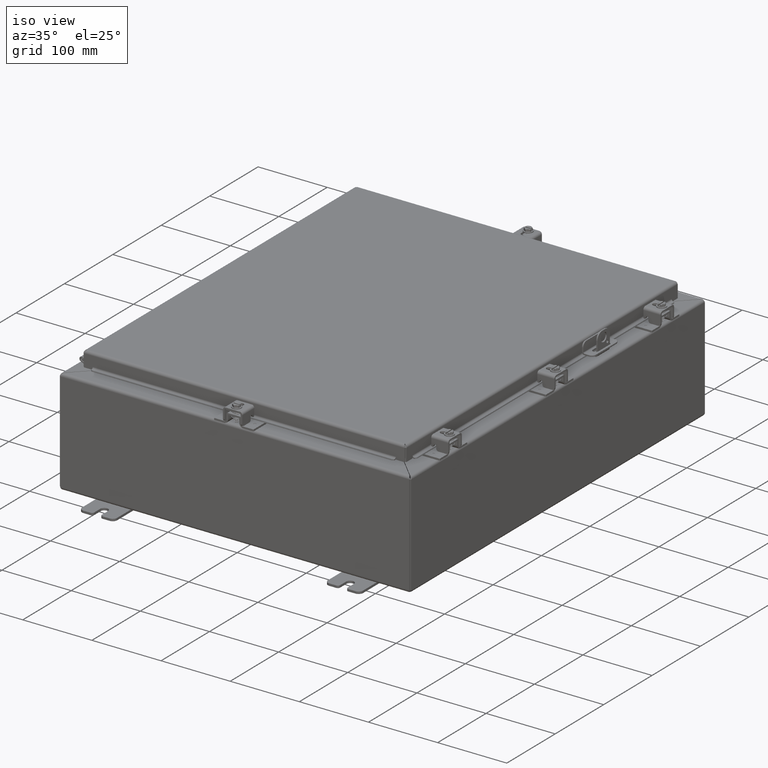
[diagram: clean part render]
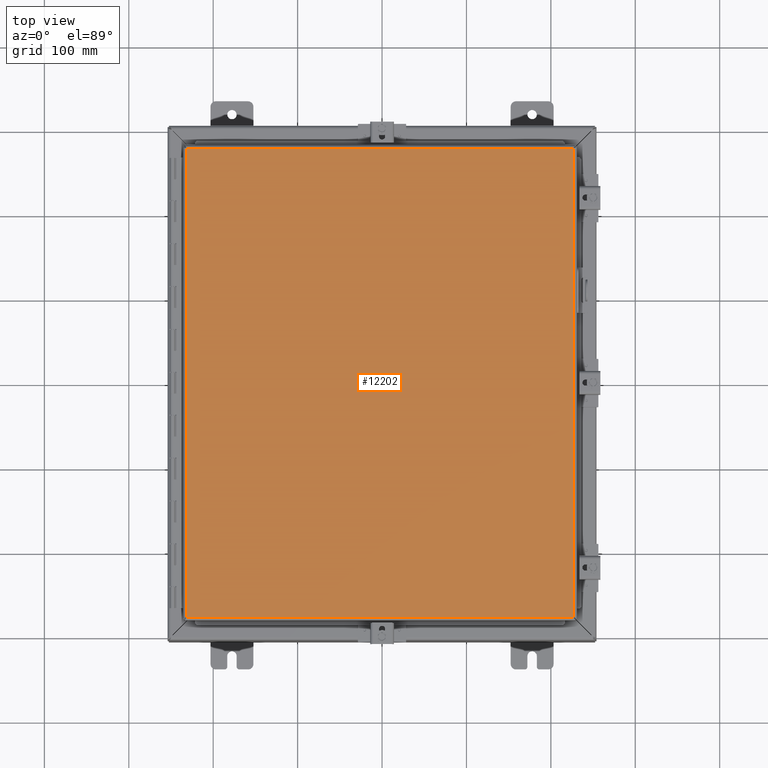
[diagram: tour spotlight — one face highlighted and labeled with its STEP entity id]
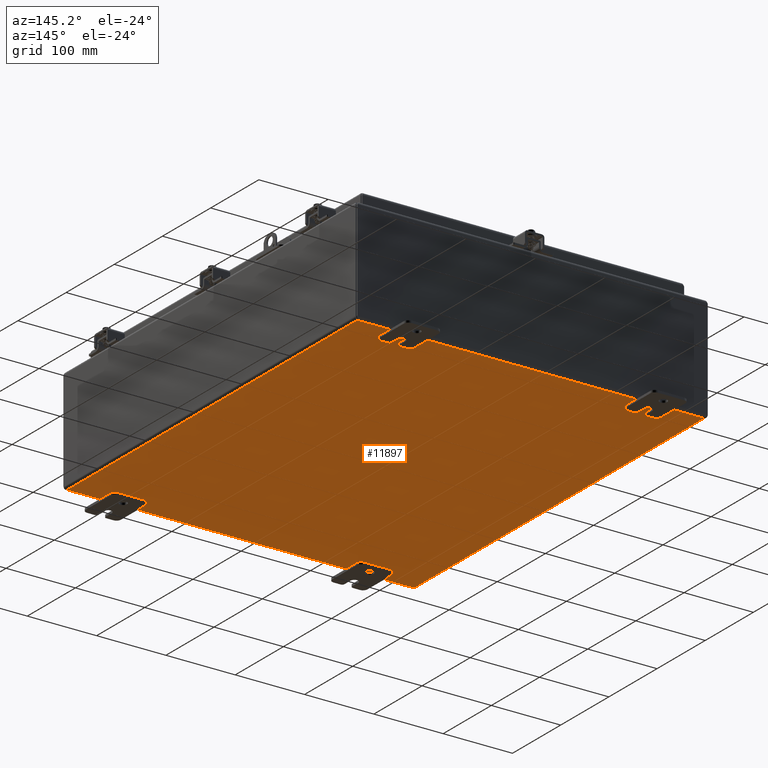
[diagram: tour spotlight — one face highlighted and labeled with its STEP entity id]
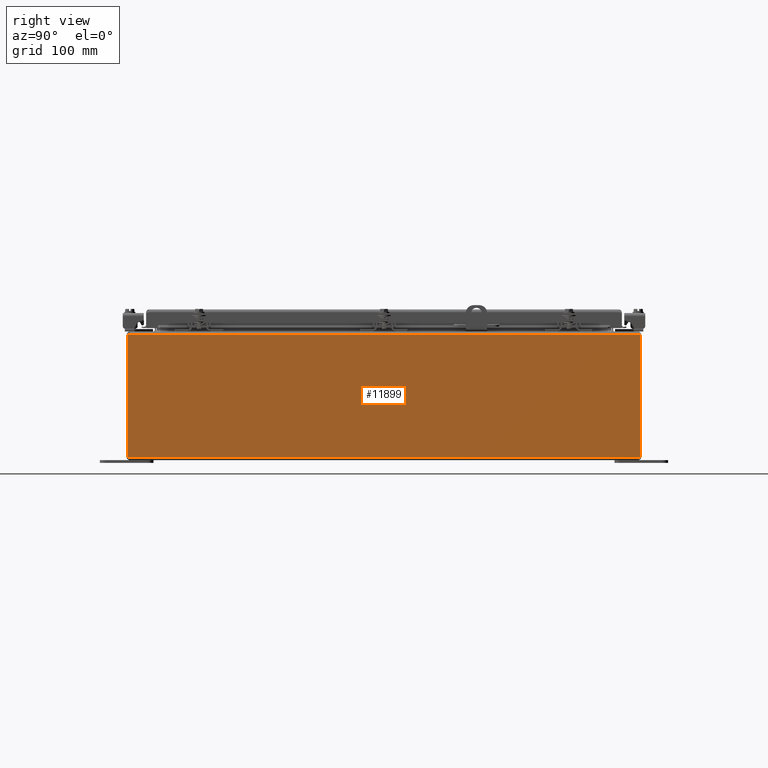
[diagram: tour spotlight — one face highlighted and labeled with its STEP entity id]
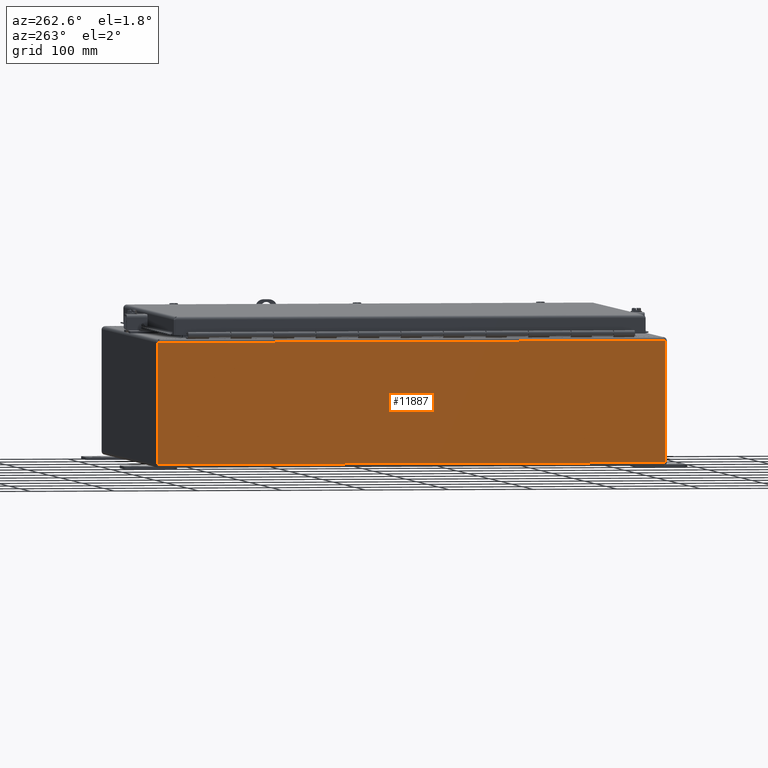
[diagram: tour spotlight — one face highlighted and labeled with its STEP entity id]
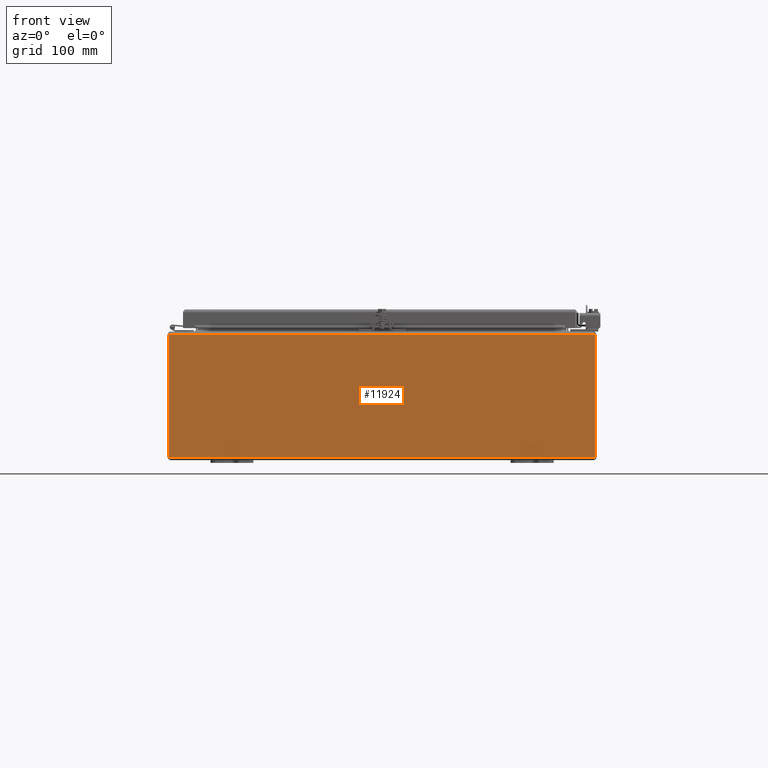
[diagram: tour spotlight — one face highlighted and labeled with its STEP entity id]
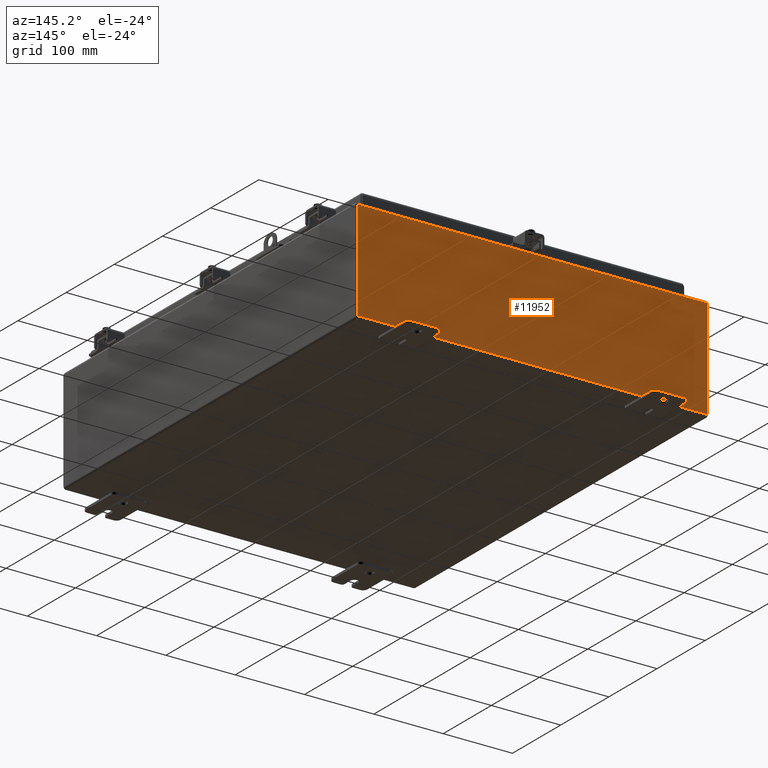
[diagram: tour spotlight — one face highlighted and labeled with its STEP entity id]
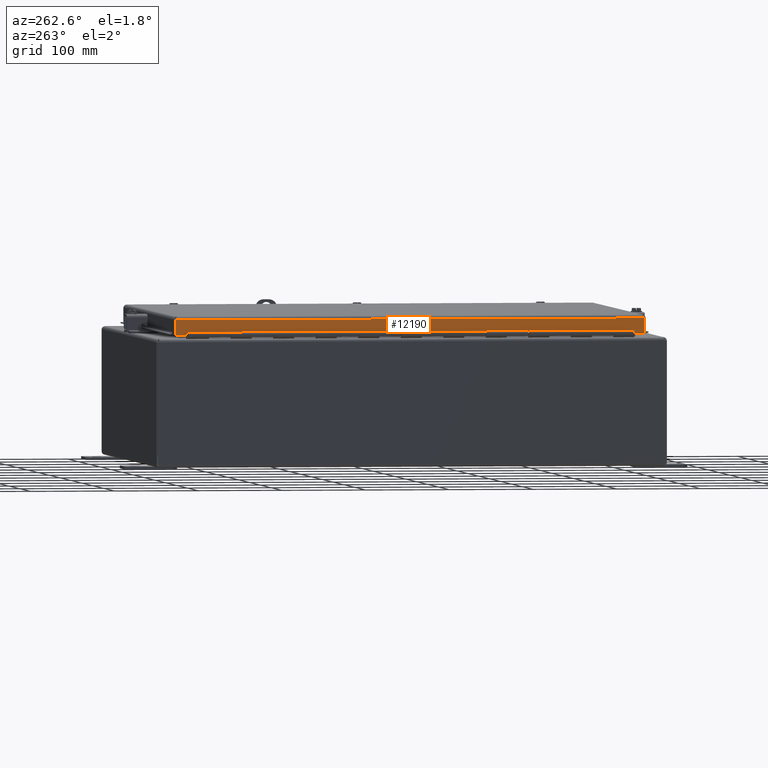
[diagram: tour spotlight — one face highlighted and labeled with its STEP entity id]
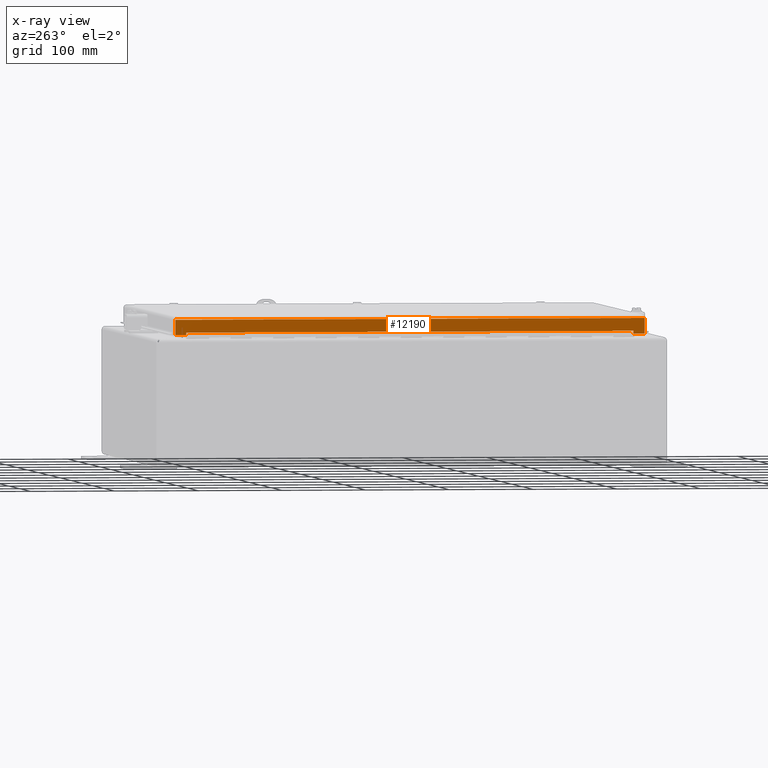
[diagram: x-ray of the same camera — body ghosted, this tour face saturated]
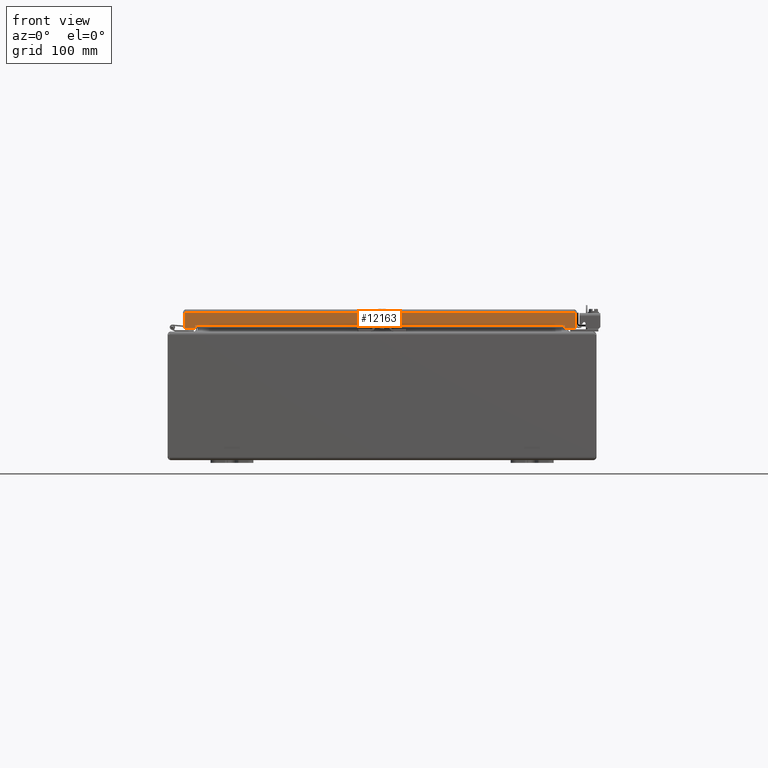
[diagram: tour spotlight — one face highlighted and labeled with its STEP entity id]
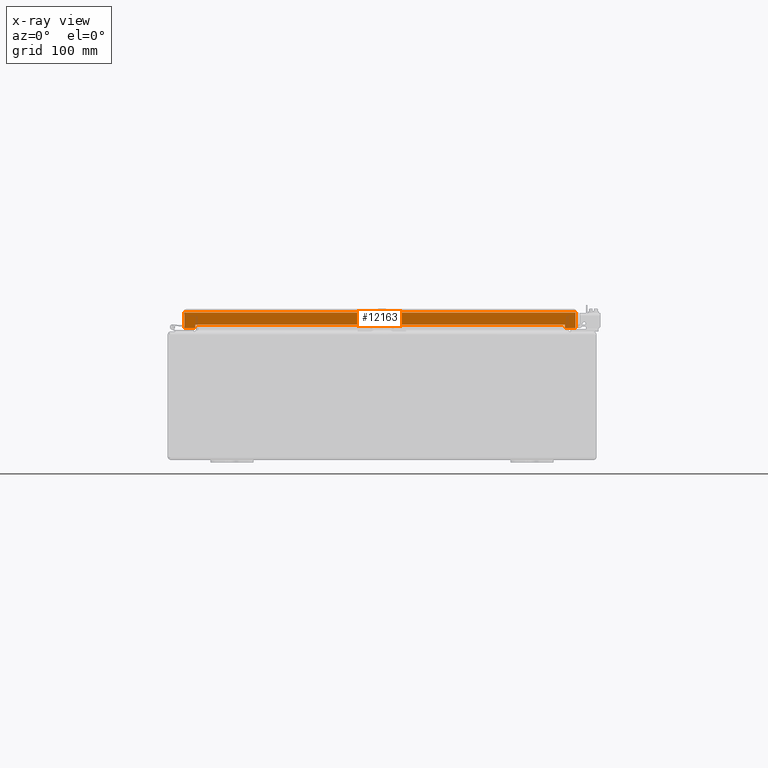
[diagram: x-ray of the same camera — body ghosted, this tour face saturated]
A machine part: a face-by-face anatomy tour. The part has 1292 B-rep faces; the first image is the clean iso view, then the 8 largest visible faces are spotlighted one at a time (largest first), each with its STEP entity span.

Face 1 — top view, entity #12202. In plain terms, the highlighted planar face has unit normal (-0, -0, -1).
Definition (entity closure, byte-faithful):
#1325=PLANE('',#12957);
#1868=FACE_OUTER_BOUND('',#2576,.T.);
#2576=EDGE_LOOP('',(#9885,#9886,#9887,#9888));
#3437=LINE('',#20374,#4516);
#3443=LINE('',#20495,#4522);
#3453=LINE('',#20648,#4532);
#3456=LINE('',#20681,#4535);
#4516=VECTOR('',#14857,18.0695);
#4522=VECTOR('',#14871,18.0695);
#4532=VECTOR('',#14893,21.882);
#4535=VECTOR('',#14902,21.882);
#5950=VERTEX_POINT('',#20365);
#5951=VERTEX_POINT('',#20373);
#5954=VERTEX_POINT('',#20443);
#5955=VERTEX_POINT('',#20487);
#7352=EDGE_CURVE('',#5951,#5950,#3437,.T.);
#7365=EDGE_CURVE('',#5954,#5955,#3443,.T.);
#7382=EDGE_CURVE('',#5950,#5954,#3453,.T.);
#7386=EDGE_CURVE('',#5955,#5951,#3456,.T.);
#9885=ORIENTED_EDGE('',*,*,#7382,.T.);
#9886=ORIENTED_EDGE('',*,*,#7365,.T.);
#9887=ORIENTED_EDGE('',*,*,#7386,.T.);
#9888=ORIENTED_EDGE('',*,*,#7352,.T.);
#12202=ADVANCED_FACE('',(#1868),#1325,.F.);
#12957=AXIS2_PLACEMENT_3D('',#20761,#14916,#14917);
#14857=DIRECTION('',(-1.,-1.53516297137412E-16,0.));
#14871=DIRECTION('',(1.,0.,0.));
#14893=DIRECTION('',(-1.27840798168001E-16,1.,0.));
#14902=DIRECTION('',(0.,-1.,0.));
#14916=DIRECTION('center_axis',(0.,0.,1.));
#14917=DIRECTION('ref_axis',(1.,0.,0.));
#20365=CARTESIAN_POINT('',(-9.03475,-10.941,-1.09273919746571E-17));
#20373=CARTESIAN_POINT('',(9.03475,-10.941,-1.09273919746571E-17));
#20374=CARTESIAN_POINT('',(4.517375,-10.941,0.));
#20443=CARTESIAN_POINT('',(-9.03475,10.941,-1.09273919746571E-17));
#20487=CARTESIAN_POINT('',(9.03475,10.941,-2.18547839493141E-17));
#20495=CARTESIAN_POINT('',(-4.59375,10.941,0.));
#20648=CARTESIAN_POINT('',(-9.03475,-5.4705,0.));
#20681=CARTESIAN_POINT('',(9.03475,5.4705,0.));
#20761=CARTESIAN_POINT('Origin',(-3.49676543189026E-16,1.3987061727561E-15,
0.));

Face 2 — auxiliary view, entity #11897. In plain terms, the highlighted planar face has unit normal (0, 0, 1).
Definition (entity closure, byte-faithful):
#1172=PLANE('',#12644);
#1563=FACE_OUTER_BOUND('',#2261,.T.);
#2261=EDGE_LOOP('',(#8533,#8534,#8535,#8536));
#3005=LINE('',#16980,#4084);
#3027=LINE('',#17127,#4106);
#3028=LINE('',#17129,#4107);
#3029=LINE('',#17130,#4108);
#4084=VECTOR('',#13799,23.6945);
#4106=VECTOR('',#13859,19.6945);
#4107=VECTOR('',#13860,23.6945);
#4108=VECTOR('',#13861,19.6945);
#5559=VERTEX_POINT('',#16971);
#5560=VERTEX_POINT('',#16979);
#5593=VERTEX_POINT('',#17126);
#5594=VERTEX_POINT('',#17128);
#6689=EDGE_CURVE('',#5560,#5559,#3005,.T.);
#6732=EDGE_CURVE('',#5559,#5593,#3027,.T.);
#6733=EDGE_CURVE('',#5593,#5594,#3028,.T.);
#6734=EDGE_CURVE('',#5594,#5560,#3029,.T.);
#8533=ORIENTED_EDGE('',*,*,#6689,.T.);
#8534=ORIENTED_EDGE('',*,*,#6732,.T.);
#8535=ORIENTED_EDGE('',*,*,#6733,.T.);
#8536=ORIENTED_EDGE('',*,*,#6734,.T.);
#11897=ADVANCED_FACE('',(#1563),#1172,.F.);
#12644=AXIS2_PLACEMENT_3D('',#17125,#13857,#13858);
#13799=DIRECTION('',(-1.18061674460833E-16,1.,0.));
#13857=DIRECTION('center_axis',(0.,0.,1.));
#13858=DIRECTION('ref_axis',(1.,0.,0.));
#13859=DIRECTION('',(1.,0.,0.));
#13860=DIRECTION('',(1.18061674460833E-16,-1.,0.));
#13861=DIRECTION('',(-1.,-1.42040282592206E-16,0.));
#16971=CARTESIAN_POINT('',(-9.84725,11.84725,-1.09273919746571E-17));
#16979=CARTESIAN_POINT('',(-9.84725,-11.84725,-1.09273919746571E-17));
#16980=CARTESIAN_POINT('',(-9.84725,-5.923625,0.));
#17125=CARTESIAN_POINT('Origin',(-1.04902962956708E-15,1.3987061727561E-15,
0.));
#17126=CARTESIAN_POINT('',(9.84725,11.84725,-2.18547839493141E-17));
#17127=CARTESIAN_POINT('',(-4.923625,11.84725,0.));
#17128=CARTESIAN_POINT('',(9.84725,-11.84725,0.));
#17129=CARTESIAN_POINT('',(9.84725,5.923625,0.));
#17130=CARTESIAN_POINT('',(4.923625,-11.84725,0.));

Face 3 — right view, entity #11899. In plain terms, the highlighted planar face has unit normal (-1, -0, 0).
Definition (entity closure, byte-faithful):
#1173=PLANE('',#12646);
#1565=FACE_OUTER_BOUND('',#2263,.T.);
#2263=EDGE_LOOP('',(#8541,#8542,#8543,#8544));
#3030=LINE('',#17141,#4109);
#3031=LINE('',#17151,#4110);
#3032=LINE('',#17153,#4111);
#3033=LINE('',#17154,#4112);
#4109=VECTOR('',#13864,23.8805857864376);
#4110=VECTOR('',#13867,5.6945);
#4111=VECTOR('',#13868,23.8805857864376);
#4112=VECTOR('',#13869,5.6945);
#5595=VERTEX_POINT('',#17132);
#5596=VERTEX_POINT('',#17140);
#5597=VERTEX_POINT('',#17150);
#5598=VERTEX_POINT('',#17152);
#6736=EDGE_CURVE('',#5596,#5595,#3030,.T.);
#6738=EDGE_CURVE('',#5597,#5595,#3031,.T.);
#6739=EDGE_CURVE('',#5597,#5598,#3032,.T.);
#6740=EDGE_CURVE('',#5596,#5598,#3033,.T.);
#8541=ORIENTED_EDGE('',*,*,#6736,.T.);
#8542=ORIENTED_EDGE('',*,*,#6738,.F.);
#8543=ORIENTED_EDGE('',*,*,#6739,.T.);
#8544=ORIENTED_EDGE('',*,*,#6740,.F.);
#11899=ADVANCED_FACE('',(#1565),#1173,.F.);
#12646=AXIS2_PLACEMENT_3D('',#17149,#13865,#13866);
#13864=DIRECTION('',(-1.16264213287887E-16,1.,-1.58816887368367E-33));
#13865=DIRECTION('center_axis',(-1.,-1.16264213287887E-16,5.36015777856773E-15));
#13866=DIRECTION('ref_axis',(4.51194637207664E-15,-1.16558847729675E-16,
1.));
#13867=DIRECTION('',(-5.39030285815812E-15,-6.16297582203915E-31,-1.));
#13868=DIRECTION('',(1.16264213287888E-16,-1.,1.17141697047521E-16));
#13869=DIRECTION('',(5.39030285815812E-15,6.16297582203915E-31,1.));
#17132=CARTESIAN_POINT('',(9.99999999999999,11.9402928932188,0.152749999999999));
#17140=CARTESIAN_POINT('',(10.,-11.9402928932188,0.152750000000002));
#17141=CARTESIAN_POINT('',(10.,-2.45551865160364E-16,0.15275));
#17149=CARTESIAN_POINT('Origin',(10.,-5.0889609974331E-16,2.99550944280289));
#17150=CARTESIAN_POINT('',(10.,11.9402928932188,5.84725));
#17151=CARTESIAN_POINT('',(9.99999999999999,11.9402928932188,0.152749999999999));
#17152=CARTESIAN_POINT('',(10.,-11.9402928932188,5.84725));
#17153=CARTESIAN_POINT('',(10.,5.97014644660941,5.84725));
#17154=CARTESIAN_POINT('',(10.,-11.9402928932188,0.152750000000002));

Face 4 — auxiliary view, entity #11887. In plain terms, the highlighted planar face has unit normal (1, 0, 0).
Definition (entity closure, byte-faithful):
#1167=PLANE('',#12626);
#1553=FACE_OUTER_BOUND('',#2251,.T.);
#2251=EDGE_LOOP('',(#8483,#8484,#8485,#8486));
#3004=LINE('',#16970,#4083);
#3006=LINE('',#16991,#4085);
#3007=LINE('',#16992,#4086);
#3008=LINE('',#16993,#4087);
#4083=VECTOR('',#13798,23.8805857864376);
#4085=VECTOR('',#13802,23.8805857864376);
#4086=VECTOR('',#13803,5.6945);
#4087=VECTOR('',#13804,5.6945);
#5557=VERTEX_POINT('',#16968);
#5558=VERTEX_POINT('',#16969);
#5561=VERTEX_POINT('',#16989);
#5562=VERTEX_POINT('',#16990);
#6687=EDGE_CURVE('',#5557,#5558,#3004,.T.);
#6691=EDGE_CURVE('',#5561,#5562,#3006,.T.);
#6692=EDGE_CURVE('',#5557,#5562,#3007,.T.);
#6693=EDGE_CURVE('',#5561,#5558,#3008,.T.);
#8483=ORIENTED_EDGE('',*,*,#6691,.T.);
#8484=ORIENTED_EDGE('',*,*,#6692,.F.);
#8485=ORIENTED_EDGE('',*,*,#6687,.T.);
#8486=ORIENTED_EDGE('',*,*,#6693,.F.);
#11887=ADVANCED_FACE('',(#1553),#1167,.F.);
#12626=AXIS2_PLACEMENT_3D('',#16988,#13800,#13801);
#13798=DIRECTION('',(1.15994787338809E-16,-1.,-3.04045633706148E-33));
#13800=DIRECTION('center_axis',(1.,1.15994787338809E-16,5.36140583123083E-15));
#13801=DIRECTION('ref_axis',(4.51194637207664E-15,-1.16558847729675E-16,
-1.));
#13802=DIRECTION('',(-1.15994787338809E-16,1.,1.17141697047521E-16));
#13803=DIRECTION('',(-5.39030285815812E-15,-6.16297582203915E-31,1.));
#13804=DIRECTION('',(5.39030285815812E-15,6.16297582203915E-31,-1.));
#16968=CARTESIAN_POINT('',(-10.,11.9402928932188,0.152750000000002));
#16969=CARTESIAN_POINT('',(-10.,-11.9402928932188,0.152749999999999));
#16970=CARTESIAN_POINT('',(-10.,1.29458697889263E-15,0.15275));
#16988=CARTESIAN_POINT('Origin',(-10.,1.20824918612136E-15,2.99550944280289));
#16989=CARTESIAN_POINT('',(-10.,-11.9402928932188,5.84725));
#16990=CARTESIAN_POINT('',(-10.,11.9402928932188,5.84725));
#16991=CARTESIAN_POINT('',(-10.,-5.97014644660941,5.84725));
#16992=CARTESIAN_POINT('',(-10.,11.9402928932188,0.152750000000002));
#16993=CARTESIAN_POINT('',(-10.,-11.9402928932188,0.152749999999999));

Face 5 — front view, entity #11924. In plain terms, the highlighted planar face has unit normal (-0, 1, 0).
Definition (entity closure, byte-faithful):
#1187=PLANE('',#12677);
#1590=FACE_OUTER_BOUND('',#2288,.T.);
#2288=EDGE_LOOP('',(#8658,#8659,#8660,#8661));
#3086=LINE('',#17517,#4165);
#3087=LINE('',#17535,#4166);
#3088=LINE('',#17536,#4167);
#3089=LINE('',#17537,#4168);
#4165=VECTOR('',#13982,19.8805857864376);
#4166=VECTOR('',#13985,19.8805857864376);
#4167=VECTOR('',#13986,5.6945);
#4168=VECTOR('',#13987,5.6945);
#5667=VERTEX_POINT('',#17515);
#5668=VERTEX_POINT('',#17516);
#5669=VERTEX_POINT('',#17533);
#5670=VERTEX_POINT('',#17534);
#6828=EDGE_CURVE('',#5667,#5668,#3086,.T.);
#6831=EDGE_CURVE('',#5669,#5670,#3087,.T.);
#6832=EDGE_CURVE('',#5667,#5670,#3088,.T.);
#6833=EDGE_CURVE('',#5669,#5668,#3089,.T.);
#8658=ORIENTED_EDGE('',*,*,#6831,.T.);
#8659=ORIENTED_EDGE('',*,*,#6832,.F.);
#8660=ORIENTED_EDGE('',*,*,#6828,.T.);
#8661=ORIENTED_EDGE('',*,*,#6833,.F.);
#11924=ADVANCED_FACE('',(#1590),#1187,.F.);
#12677=AXIS2_PLACEMENT_3D('',#17532,#13983,#13984);
#13982=DIRECTION('',(-1.,-1.39328764680369E-16,0.));
#13983=DIRECTION('center_axis',(-1.39328764680369E-16,1.,5.36084208014042E-15));
#13984=DIRECTION('ref_axis',(1.,0.,0.));
#13985=DIRECTION('',(1.,1.39328764680369E-16,-2.92074959283E-33));
#13986=DIRECTION('',(-7.64209001932855E-31,5.39030285815812E-15,-1.));
#13987=DIRECTION('',(7.64209001932855E-31,-5.39030285815812E-15,1.));
#17515=CARTESIAN_POINT('',(9.94029289321881,-12.,5.84725));
#17516=CARTESIAN_POINT('',(-9.94029289321881,-12.,5.84725));
#17517=CARTESIAN_POINT('',(4.97014644660941,-12.,5.84725));
#17532=CARTESIAN_POINT('Origin',(-9.25538632349849E-16,-12.,2.99661349017726));
#17533=CARTESIAN_POINT('',(-9.94029289321882,-12.,0.15275));
#17534=CARTESIAN_POINT('',(9.94029289321881,-12.,0.152749999999999));
#17535=CARTESIAN_POINT('',(-4.52097727190077E-16,-12.,0.152749999999997));
#17536=CARTESIAN_POINT('',(9.94029289321881,-12.,0.152749999999999));
#17537=CARTESIAN_POINT('',(-9.94029289321881,-12.,0.15275));

Face 6 — auxiliary view, entity #11952. In plain terms, the highlighted planar face has unit normal (0, -1, 0).
Definition (entity closure, byte-faithful):
#1195=PLANE('',#12708);
#1618=FACE_OUTER_BOUND('',#2316,.T.);
#2316=EDGE_LOOP('',(#8788,#8789,#8790,#8791));
#3125=LINE('',#18111,#4204);
#3126=LINE('',#18121,#4205);
#3127=LINE('',#18123,#4206);
#3128=LINE('',#18124,#4207);
#4204=VECTOR('',#14083,19.8805857864376);
#4205=VECTOR('',#14086,5.6945);
#4206=VECTOR('',#14087,19.8805857864376);
#4207=VECTOR('',#14088,5.6945);
#5723=VERTEX_POINT('',#18102);
#5724=VERTEX_POINT('',#18110);
#5725=VERTEX_POINT('',#18120);
#5726=VERTEX_POINT('',#18122);
#6920=EDGE_CURVE('',#5724,#5723,#3125,.T.);
#6922=EDGE_CURVE('',#5725,#5723,#3126,.T.);
#6923=EDGE_CURVE('',#5725,#5726,#3127,.T.);
#6924=EDGE_CURVE('',#5724,#5726,#3128,.T.);
#8788=ORIENTED_EDGE('',*,*,#6920,.T.);
#8789=ORIENTED_EDGE('',*,*,#6922,.F.);
#8790=ORIENTED_EDGE('',*,*,#6923,.T.);
#8791=ORIENTED_EDGE('',*,*,#6924,.F.);
#11952=ADVANCED_FACE('',(#1618),#1195,.F.);
#12708=AXIS2_PLACEMENT_3D('',#18119,#14084,#14085);
#14083=DIRECTION('',(1.,2.20959314483154E-16,-7.03553802579745E-17));
#14084=DIRECTION('center_axis',(2.20959314483154E-16,-1.,5.47792925946447E-15));
#14085=DIRECTION('ref_axis',(1.,0.,0.));
#14086=DIRECTION('',(-3.82104500966428E-31,5.39030285815812E-15,1.));
#14087=DIRECTION('',(-1.,-2.20959314483154E-16,8.14065130358675E-31));
#14088=DIRECTION('',(3.82104500966428E-31,-5.39030285815812E-15,-1.));
#18102=CARTESIAN_POINT('',(9.94029289321881,12.,5.84725));
#18110=CARTESIAN_POINT('',(-9.94029289321881,12.,5.84725));
#18111=CARTESIAN_POINT('',(-4.97014644660941,12.,5.84725));
#18119=CARTESIAN_POINT('Origin',(3.75350180377668E-16,12.,2.99661349017727));
#18120=CARTESIAN_POINT('',(9.94029289321881,12.,0.15275));
#18121=CARTESIAN_POINT('',(9.94029289321881,12.,0.15275));
#18122=CARTESIAN_POINT('',(-9.94029289321881,12.,0.15275));
#18123=CARTESIAN_POINT('',(-5.20093399025411E-16,12.,0.152749999999999));
#18124=CARTESIAN_POINT('',(-9.94029289321881,12.,0.152749999999999));

Face 7 — auxiliary view, entity #12190. An x-ray twin of the same camera follows (body ghosted, this face saturated) — the face is partly hidden behind the body. In plain terms, the highlighted planar face has unit normal (1, 0, -0).
Definition (entity closure, byte-faithful):
#1319=PLANE('',#12949);
#1856=FACE_OUTER_BOUND('',#2564,.T.);
#2564=EDGE_LOOP('',(#9832,#9833,#9834,#9835,#9836,#9837,#9838,#9839));
#3310=LINE('',#19991,#4389);
#3313=LINE('',#19997,#4392);
#3317=LINE('',#20004,#4396);
#3323=LINE('',#20017,#4402);
#3442=LINE('',#20453,#4521);
#3448=LINE('',#20614,#4527);
#3451=LINE('',#20620,#4530);
#3452=LINE('',#20647,#4531);
#4389=VECTOR('',#14600,21.03125);
#4392=VECTOR('',#14605,0.124999999999999);
#4396=VECTOR('',#14611,0.124999999999999);
#4402=VECTOR('',#14621,0.518417893218819);
#4521=VECTOR('',#14866,0.722249999999999);
#4527=VECTOR('',#14880,0.518417893218819);
#4530=VECTOR('',#14887,0.722250000000003);
#4531=VECTOR('',#14892,22.0680857864376);
#5860=VERTEX_POINT('',#19988);
#5861=VERTEX_POINT('',#19990);
#5863=VERTEX_POINT('',#19996);
#5865=VERTEX_POINT('',#20002);
#5870=VERTEX_POINT('',#20016);
#5948=VERTEX_POINT('',#20313);
#5959=VERTEX_POINT('',#20612);
#5960=VERTEX_POINT('',#20618);
#7204=EDGE_CURVE('',#5861,#5860,#3310,.T.);
#7207=EDGE_CURVE('',#5863,#5861,#3313,.T.);
#7211=EDGE_CURVE('',#5860,#5865,#3317,.T.);
#7217=EDGE_CURVE('',#5870,#5863,#3323,.T.);
#7361=EDGE_CURVE('',#5948,#5870,#3442,.T.);
#7376=EDGE_CURVE('',#5865,#5959,#3448,.T.);
#7379=EDGE_CURVE('',#5959,#5960,#3451,.T.);
#7381=EDGE_CURVE('',#5960,#5948,#3452,.T.);
#9832=ORIENTED_EDGE('',*,*,#7211,.T.);
#9833=ORIENTED_EDGE('',*,*,#7376,.T.);
#9834=ORIENTED_EDGE('',*,*,#7379,.T.);
#9835=ORIENTED_EDGE('',*,*,#7381,.T.);
#9836=ORIENTED_EDGE('',*,*,#7361,.T.);
#9837=ORIENTED_EDGE('',*,*,#7217,.T.);
#9838=ORIENTED_EDGE('',*,*,#7207,.T.);
#9839=ORIENTED_EDGE('',*,*,#7204,.T.);
#12190=ADVANCED_FACE('',(#1856),#1319,.F.);
#12949=AXIS2_PLACEMENT_3D('',#20649,#14894,#14895);
#14600=DIRECTION('',(-1.25760442239347E-16,1.,6.24188041141781E-17));
#14605=DIRECTION('',(5.1763741234396E-15,-1.10856642726522E-14,-1.));
#14611=DIRECTION('',(-5.1763741234396E-15,-1.03985109396678E-16,1.));
#14621=DIRECTION('',(0.,1.,0.));
#14866=DIRECTION('',(-3.87319120181683E-15,-3.87319120181683E-15,1.));
#14880=DIRECTION('',(0.,1.,0.));
#14887=DIRECTION('',(3.87319120181682E-15,-3.87319120181682E-15,-1.));
#14892=DIRECTION('',(1.25760442239347E-16,-1.,-1.72551236917601E-33));
#14894=DIRECTION('center_axis',(1.,1.25760442239347E-16,5.1763741234396E-15));
#14895=DIRECTION('ref_axis',(4.51194637207664E-15,-1.26080556417451E-16,
-1.));
#19988=CARTESIAN_POINT('',(-9.1875,10.515625,0.749999999999998));
#19990=CARTESIAN_POINT('',(-9.1875,-10.515625,0.749999999999996));
#19991=CARTESIAN_POINT('',(-9.1875,5.2578125,0.749999999999997));
#19996=CARTESIAN_POINT('',(-9.1875,-10.515625,0.874999999999996));
#19997=CARTESIAN_POINT('',(-9.1875,-10.515625,0.587939494886532));
#20002=CARTESIAN_POINT('',(-9.1875,10.515625,0.874999999999997));
#20004=CARTESIAN_POINT('',(-9.1875,10.515625,0.650439494886475));
#20016=CARTESIAN_POINT('',(-9.1875,-11.0340428932188,0.874999999999999));
#20017=CARTESIAN_POINT('',(-9.1875,-68.3947094643132,0.874999999999999));
#20313=CARTESIAN_POINT('',(-9.1875,-11.0340428932188,0.152749999999996));
#20453=CARTESIAN_POINT('',(-9.1875,-11.0340428932188,0.152749999999999));
#20612=CARTESIAN_POINT('',(-9.1875,11.0340428932188,0.875000000000001));
#20614=CARTESIAN_POINT('',(-9.1875,-68.3947094643132,0.874999999999999));
#20618=CARTESIAN_POINT('',(-9.1875,11.0340428932188,0.152749999999998));
#20620=CARTESIAN_POINT('',(-9.1875,11.0340428932188,0.152749999999998));
#20647=CARTESIAN_POINT('',(-9.1875,-2.42269591051685E-16,0.152749999999999));
#20649=CARTESIAN_POINT('Origin',(-9.1875,-4.65293408958795E-16,0.425878989772951));

Face 8 — front view, entity #12163. An x-ray twin of the same camera follows (body ghosted, this face saturated) — the face is partly hidden behind the body. In plain terms, the highlighted planar face has unit normal (-0, 1, -0).
Definition (entity closure, byte-faithful):
#1307=PLANE('',#12931);
#1829=FACE_OUTER_BOUND('',#2537,.T.);
#2537=EDGE_LOOP('',(#9717,#9718,#9719,#9720,#9721,#9722,#9723,#9724,#9725,
#9726,#9727,#9728));
#3337=LINE('',#20060,#4416);
#3403=LINE('',#20200,#4482);
#3406=LINE('',#20208,#4485);
#3409=LINE('',#20212,#4488);
#3419=LINE('',#20233,#4498);
#3421=LINE('',#20237,#4500);
#3423=LINE('',#20240,#4502);
#3424=LINE('',#20243,#4503);
#3425=LINE('',#20245,#4504);
#3426=LINE('',#20247,#4505);
#3427=LINE('',#20249,#4506);
#3428=LINE('',#20250,#4507);
#4416=VECTOR('',#14675,17.2555857864376);
#4482=VECTOR('',#14795,0.000199999999999981);
#4485=VECTOR('',#14800,0.15295);
#4488=VECTOR('',#14805,0.000199999999999981);
#4498=VECTOR('',#14819,0.15295);
#4500=VECTOR('',#14823,0.000199999999999981);
#4502=VECTOR('',#14827,0.000199999999999981);
#4503=VECTOR('',#14830,0.4998);
#4504=VECTOR('',#14831,0.72225);
#4505=VECTOR('',#14832,18.2555857864376);
#4506=VECTOR('',#14833,0.72225);
#4507=VECTOR('',#14834,0.4998);
#5878=VERTEX_POINT('',#20049);
#5879=VERTEX_POINT('',#20053);
#5926=VERTEX_POINT('',#20198);
#5929=VERTEX_POINT('',#20205);
#5930=VERTEX_POINT('',#20207);
#5938=VERTEX_POINT('',#20230);
#5939=VERTEX_POINT('',#20232);
#5940=VERTEX_POINT('',#20236);
#5941=VERTEX_POINT('',#20242);
#5942=VERTEX_POINT('',#20244);
#5943=VERTEX_POINT('',#20246);
#5944=VERTEX_POINT('',#20248);
#7239=EDGE_CURVE('',#5878,#5879,#3337,.T.);
#7309=EDGE_CURVE('',#5879,#5926,#3403,.T.);
#7312=EDGE_CURVE('',#5930,#5929,#3406,.T.);
#7315=EDGE_CURVE('',#5926,#5930,#3409,.T.);
#7325=EDGE_CURVE('',#5939,#5938,#3419,.T.);
#7327=EDGE_CURVE('',#5940,#5878,#3421,.T.);
#7329=EDGE_CURVE('',#5938,#5940,#3423,.T.);
#7330=EDGE_CURVE('',#5941,#5929,#3424,.T.);
#7331=EDGE_CURVE('',#5942,#5941,#3425,.T.);
#7332=EDGE_CURVE('',#5942,#5943,#3426,.T.);
#7333=EDGE_CURVE('',#5944,#5943,#3427,.T.);
#7334=EDGE_CURVE('',#5939,#5944,#3428,.T.);
#9717=ORIENTED_EDGE('',*,*,#7312,.T.);
#9718=ORIENTED_EDGE('',*,*,#7330,.F.);
#9719=ORIENTED_EDGE('',*,*,#7331,.F.);
#9720=ORIENTED_EDGE('',*,*,#7332,.T.);
#9721=ORIENTED_EDGE('',*,*,#7333,.F.);
#9722=ORIENTED_EDGE('',*,*,#7334,.F.);
#9723=ORIENTED_EDGE('',*,*,#7325,.T.);
#9724=ORIENTED_EDGE('',*,*,#7329,.T.);
#9725=ORIENTED_EDGE('',*,*,#7327,.T.);
#9726=ORIENTED_EDGE('',*,*,#7239,.T.);
#9727=ORIENTED_EDGE('',*,*,#7309,.T.);
#9728=ORIENTED_EDGE('',*,*,#7315,.T.);
#12163=ADVANCED_FACE('',(#1829),#1307,.F.);
#12931=AXIS2_PLACEMENT_3D('',#20241,#14828,#14829);
#14675=DIRECTION('',(1.,-3.34026114320378E-18,-2.30306178276995E-31));
#14795=DIRECTION('',(0.,-3.4312191997631E-15,-1.));
#14800=DIRECTION('',(0.,3.4312191997631E-15,1.));
#14805=DIRECTION('',(1.,-3.34026114320378E-18,9.89839805003489E-33));
#14819=DIRECTION('',(0.,-3.4312191997631E-15,-1.));
#14823=DIRECTION('',(0.,3.4312191997631E-15,1.));
#14827=DIRECTION('',(1.,-3.34026114320378E-18,9.89839805003489E-33));
#14828=DIRECTION('center_axis',(-3.34026114320378E-18,-1.,3.4312191997631E-15));
#14829=DIRECTION('ref_axis',(1.,0.,0.));
#14830=DIRECTION('',(-1.,0.,0.));
#14831=DIRECTION('',(0.,5.39030285815812E-15,1.));
#14832=DIRECTION('',(-1.,3.34026114320378E-18,-1.80050191872058E-32));
#14833=DIRECTION('',(5.80978680272525E-15,-3.4312191997631E-15,-1.));
#14834=DIRECTION('',(-1.,0.,0.));
#20049=CARTESIAN_POINT('',(-8.62779289321882,11.09375,0.722249999999998));
#20053=CARTESIAN_POINT('',(8.62779289321882,11.09375,0.722249999999998));
#20060=CARTESIAN_POINT('',(4.29055380368385,11.09375,0.722249999999998));
#20198=CARTESIAN_POINT('',(8.62779289321882,11.09375,0.722049999999998));
#20200=CARTESIAN_POINT('',(8.62779289321882,11.09375,0.574400558754762));
#20205=CARTESIAN_POINT('',(8.62799289321882,11.09375,0.874999999999998));
#20207=CARTESIAN_POINT('',(8.62799289321882,11.09375,0.722049999999998));
#20208=CARTESIAN_POINT('',(8.62799289321882,11.09375,0.650875558754762));
#20212=CARTESIAN_POINT('',(4.29065380368385,11.09375,0.722049999999998));
#20230=CARTESIAN_POINT('',(-8.62799289321882,11.09375,0.722049999999998));
#20232=CARTESIAN_POINT('',(-8.62799289321882,11.09375,0.874999999999998));
#20233=CARTESIAN_POINT('',(-8.62799289321882,11.09375,0.574400558754762));
#20236=CARTESIAN_POINT('',(-8.62779289321882,11.09375,0.722049999999998));
#20237=CARTESIAN_POINT('',(-8.62779289321882,11.09375,0.650875558754762));
#20240=CARTESIAN_POINT('',(-4.33723908953497,11.09375,0.722049999999998));
#20241=CARTESIAN_POINT('Origin',(-0.0466852858511174,11.09375,0.426751117509526));
#20242=CARTESIAN_POINT('',(9.12779289321882,11.09375,0.874999999999999));
#20243=CARTESIAN_POINT('',(9.12779289321882,11.09375,0.874999999999999));
#20244=CARTESIAN_POINT('',(9.12779289321881,11.09375,0.152749999999999));
#20245=CARTESIAN_POINT('',(9.12779289321882,11.09375,0.152749999999999));
#20246=CARTESIAN_POINT('',(-9.12779289321881,11.09375,0.152749999999998));
#20247=CARTESIAN_POINT('',(-0.0615301429255595,11.09375,0.152749999999997));
#20248=CARTESIAN_POINT('',(-9.12779289321882,11.09375,0.874999999999998));
#20249=CARTESIAN_POINT('',(-9.12779289321882,11.09375,0.470313058754736));
#20250=CARTESIAN_POINT('',(9.12779289321882,11.09375,0.874999999999999));